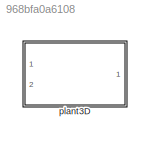
MODEL slx_968bfa0a6108
KIND library
CONFIG AbsTol = auto
CONFIG EnableMultiTasking = off
CONFIG FixedStep = auto
CONFIG MaxStep = auto
CONFIG MinStep = auto
CONFIG RelTol = 1e-3
CONFIG SampleTimeConstraint = Unconstrained
CONFIG Solver = VariableStepAuto
CONFIG SolverName = VariableStepAuto
CONFIG StartTime = 0.0
CONFIG StopTime = 10.0
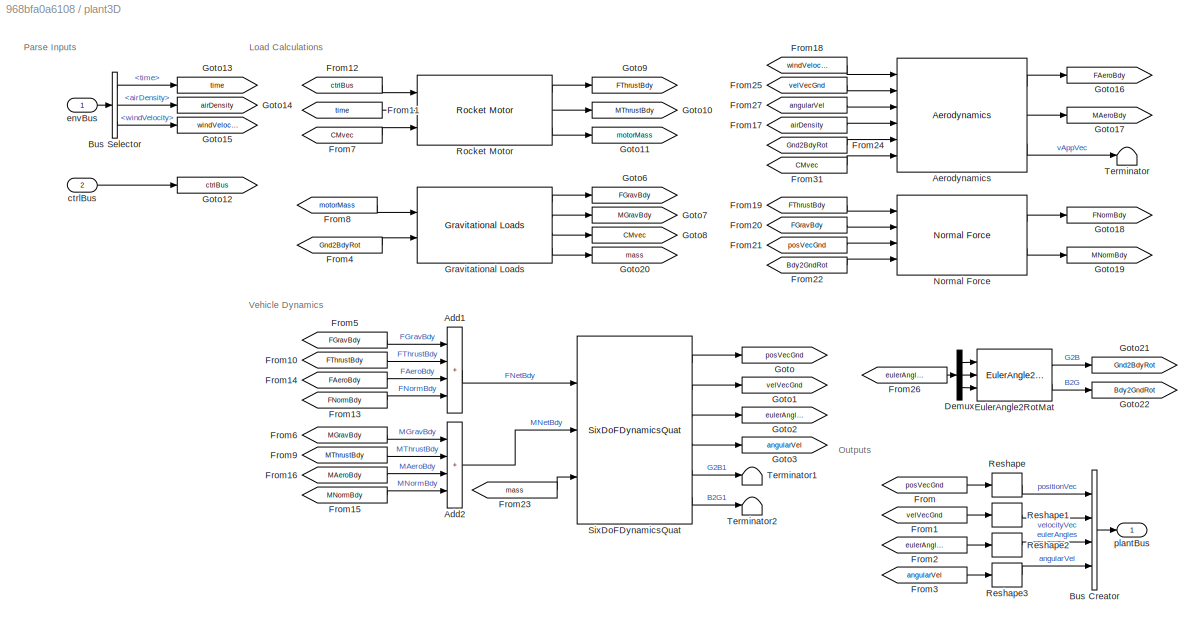
BLOCK [SubSystem] plant3D
  Ports = [2, 1]
  RequestExecContextInheritance = off
  VariantControl = strcmpi(PLANT,'wind3D')
BLOCK [Sum] plant3D/Add1
  IconShape = rectangular
  Inputs = ++++
  Ports = [4, 1]
BLOCK [Sum] plant3D/Add2
  IconShape = rectangular
  Inputs = ++++
  Ports = [4, 1]
BLOCK [Reference] plant3D/Aerodynamics  REF=aero3D_cl/Aerodynamics
  Ports = [6, 3]
  SourceBlock = aero3D_cl/Aerodynamics
BLOCK [BusCreator] plant3D/Bus Creator
  DisplayOption = bar
  InheritFromInputs = on
  Inputs = 4
  Ports = [4, 1]
BLOCK [BusSelector] plant3D/Bus Selector
  OutputSignals = time,airDensity,windVelocity
  Ports = [1, 3]
BLOCK [Demux] plant3D/Demux
  Outputs = 3
  Ports = [1, 3]
BLOCK [Reference] plant3D/EulerAngle2RotMat  REF=eulAng2RotMat_ul/EulerAngle2RotMat
  Ports = [3, 2]
  SourceBlock = eulAng2RotMat_ul/EulerAngle2RotMat
  SourceType = SubSystem
BLOCK [From] plant3D/From
  GotoTag = posVecGnd
BLOCK [From] plant3D/From1
  GotoTag = velVecGnd
BLOCK [From] plant3D/From10
  GotoTag = FThrustBdy
BLOCK [From] plant3D/From11
  GotoTag = time
BLOCK [From] plant3D/From12
  GotoTag = ctrlBus
BLOCK [From] plant3D/From13
  GotoTag = FNormBdy
BLOCK [From] plant3D/From14
  GotoTag = FAeroBdy
BLOCK [From] plant3D/From15
  GotoTag = MNormBdy
BLOCK [From] plant3D/From16
  GotoTag = MAeroBdy
BLOCK [From] plant3D/From17
  GotoTag = airDensity
BLOCK [From] plant3D/From18
  GotoTag = windVelocity
BLOCK [From] plant3D/From19
  GotoTag = FThrustBdy
BLOCK [From] plant3D/From2
  GotoTag = eulerAngles
BLOCK [From] plant3D/From20
  GotoTag = FGravBdy
BLOCK [From] plant3D/From21
  GotoTag = posVecGnd
BLOCK [From] plant3D/From22
  GotoTag = Bdy2GndRot
BLOCK [From] plant3D/From23
  GotoTag = mass
BLOCK [From] plant3D/From24
  GotoTag = Gnd2BdyRot
BLOCK [From] plant3D/From25
  GotoTag = velVecGnd
BLOCK [From] plant3D/From26
  GotoTag = eulerAngles
BLOCK [From] plant3D/From27
  GotoTag = angularVel
BLOCK [From] plant3D/From3
  GotoTag = angularVel
BLOCK [From] plant3D/From31
  GotoTag = CMvec
BLOCK [From] plant3D/From4
  GotoTag = Gnd2BdyRot
BLOCK [From] plant3D/From5
  GotoTag = FGravBdy
BLOCK [From] plant3D/From6
  GotoTag = MGravBdy
BLOCK [From] plant3D/From7
  GotoTag = CMvec
BLOCK [From] plant3D/From8
  GotoTag = motorMass
BLOCK [From] plant3D/From9
  GotoTag = MThrustBdy
BLOCK [Goto] plant3D/Goto
  GotoTag = posVecGnd
BLOCK [Goto] plant3D/Goto1
  GotoTag = velVecGnd
BLOCK [Goto] plant3D/Goto10
  GotoTag = MThrustBdy
BLOCK [Goto] plant3D/Goto11
  GotoTag = motorMass
BLOCK [Goto] plant3D/Goto12
  GotoTag = ctrlBus
BLOCK [Goto] plant3D/Goto13
  GotoTag = time
BLOCK [Goto] plant3D/Goto14
  GotoTag = airDensity
BLOCK [Goto] plant3D/Goto15
  GotoTag = windVelocity
BLOCK [Goto] plant3D/Goto16
  GotoTag = FAeroBdy
BLOCK [Goto] plant3D/Goto17
  GotoTag = MAeroBdy
BLOCK [Goto] plant3D/Goto18
  GotoTag = FNormBdy
BLOCK [Goto] plant3D/Goto19
  GotoTag = MNormBdy
BLOCK [Goto] plant3D/Goto2
  GotoTag = eulerAngles
BLOCK [Goto] plant3D/Goto20
  GotoTag = mass
BLOCK [Goto] plant3D/Goto21
  GotoTag = Gnd2BdyRot
BLOCK [Goto] plant3D/Goto22
  GotoTag = Bdy2GndRot
BLOCK [Goto] plant3D/Goto3
  GotoTag = angularVel
BLOCK [Goto] plant3D/Goto6
  GotoTag = FGravBdy
BLOCK [Goto] plant3D/Goto7
  GotoTag = MGravBdy
BLOCK [Goto] plant3D/Goto8
  GotoTag = CMvec
BLOCK [Goto] plant3D/Goto9
  GotoTag = FThrustBdy
BLOCK [Reference] plant3D/Gravitational Loads  REF=gravLoads3D_ul/Gravitational Loads
  Ports = [2, 4]
  SourceBlock = gravLoads3D_ul/Gravitational Loads
BLOCK [Reference] plant3D/Normal Force  REF=normalForce_ul/Normal Force
  Ports = [4, 2]
  SourceBlock = normalForce_ul/Normal Force
BLOCK [Reshape] plant3D/Reshape
  OutputDimensionality = Column vector (2-D)
  Ports = [1, 1]
BLOCK [Reshape] plant3D/Reshape1
  OutputDimensionality = Column vector (2-D)
  Ports = [1, 1]
BLOCK [Reshape] plant3D/Reshape2
  OutputDimensionality = Column vector (2-D)
  Ports = [1, 1]
BLOCK [Reshape] plant3D/Reshape3
  OutputDimensionality = Column vector (2-D)
  Ports = [1, 1]
BLOCK [Reference] plant3D/Rocket Motor  REF=motor3D_cl/Rocket Motor
  Ports = [3, 3]
  SourceBlock = motor3D_cl/Rocket Motor
BLOCK [Reference] plant3D/SixDoFDynamicsQuat  REF=SixDoFDynamicsQuat_cl/SixDoFDynamicsQuat
  Ports = [3, 6]
  SourceBlock = SixDoFDynamicsQuat_cl/SixDoFDynamicsQuat
BLOCK [Terminator] plant3D/Terminator
BLOCK [Terminator] plant3D/Terminator1
BLOCK [Terminator] plant3D/Terminator2
BLOCK [Inport] plant3D/ctrlBus
  Port = 2
BLOCK [Inport] plant3D/envBus
BLOCK [Outport] plant3D/plantBus
ANNOTATION plant3D: Load Calculations
ANNOTATION plant3D: Outputs
ANNOTATION plant3D: Parse Inputs
ANNOTATION plant3D: Vehicle Dynamics
LINE plant3D/Add1:1 -> plant3D/SixDoFDynamicsQuat:1
LINE plant3D/Add2:1 -> plant3D/SixDoFDynamicsQuat:2
LINE plant3D/Aerodynamics:1 -> plant3D/Goto16:1
LINE plant3D/Aerodynamics:2 -> plant3D/Goto17:1
LINE plant3D/Aerodynamics:3 -> plant3D/Terminator:1
LINE plant3D/Bus Creator:1 -> plant3D/plantBus:1
LINE plant3D/Bus Selector:1 -> plant3D/Goto13:1
LINE plant3D/Bus Selector:2 -> plant3D/Goto14:1
LINE plant3D/Bus Selector:3 -> plant3D/Goto15:1
LINE plant3D/Demux:1 -> plant3D/EulerAngle2RotMat:1
LINE plant3D/Demux:2 -> plant3D/EulerAngle2RotMat:2
LINE plant3D/Demux:3 -> plant3D/EulerAngle2RotMat:3
LINE plant3D/EulerAngle2RotMat:1 -> plant3D/Goto21:1
LINE plant3D/EulerAngle2RotMat:2 -> plant3D/Goto22:1
LINE plant3D/From10:1 -> plant3D/Add1:2
LINE plant3D/From11:1 -> plant3D/Rocket Motor:2
LINE plant3D/From12:1 -> plant3D/Rocket Motor:1
LINE plant3D/From13:1 -> plant3D/Add1:4
LINE plant3D/From14:1 -> plant3D/Add1:3
LINE plant3D/From15:1 -> plant3D/Add2:4
LINE plant3D/From16:1 -> plant3D/Add2:3
LINE plant3D/From17:1 -> plant3D/Aerodynamics:4
LINE plant3D/From18:1 -> plant3D/Aerodynamics:1
LINE plant3D/From19:1 -> plant3D/Normal Force:1
LINE plant3D/From1:1 -> plant3D/Reshape1:1
LINE plant3D/From20:1 -> plant3D/Normal Force:2
LINE plant3D/From21:1 -> plant3D/Normal Force:3
LINE plant3D/From22:1 -> plant3D/Normal Force:4
LINE plant3D/From23:1 -> plant3D/SixDoFDynamicsQuat:3
LINE plant3D/From24:1 -> plant3D/Aerodynamics:5
LINE plant3D/From25:1 -> plant3D/Aerodynamics:2
LINE plant3D/From26:1 -> plant3D/Demux:1
LINE plant3D/From27:1 -> plant3D/Aerodynamics:3
LINE plant3D/From2:1 -> plant3D/Reshape2:1
LINE plant3D/From31:1 -> plant3D/Aerodynamics:6
LINE plant3D/From3:1 -> plant3D/Reshape3:1
LINE plant3D/From4:1 -> plant3D/Gravitational Loads:2
LINE plant3D/From5:1 -> plant3D/Add1:1
LINE plant3D/From6:1 -> plant3D/Add2:1
LINE plant3D/From7:1 -> plant3D/Rocket Motor:3
LINE plant3D/From8:1 -> plant3D/Gravitational Loads:1
LINE plant3D/From9:1 -> plant3D/Add2:2
LINE plant3D/From:1 -> plant3D/Reshape:1
LINE plant3D/Gravitational Loads:1 -> plant3D/Goto6:1
LINE plant3D/Gravitational Loads:2 -> plant3D/Goto7:1
LINE plant3D/Gravitational Loads:3 -> plant3D/Goto8:1
LINE plant3D/Gravitational Loads:4 -> plant3D/Goto20:1
LINE plant3D/Normal Force:1 -> plant3D/Goto18:1
LINE plant3D/Normal Force:2 -> plant3D/Goto19:1
LINE plant3D/Reshape1:1 -> plant3D/Bus Creator:2
LINE plant3D/Reshape2:1 -> plant3D/Bus Creator:3
LINE plant3D/Reshape3:1 -> plant3D/Bus Creator:4
LINE plant3D/Reshape:1 -> plant3D/Bus Creator:1
LINE plant3D/Rocket Motor:1 -> plant3D/Goto9:1
LINE plant3D/Rocket Motor:2 -> plant3D/Goto10:1
LINE plant3D/Rocket Motor:3 -> plant3D/Goto11:1
LINE plant3D/SixDoFDynamicsQuat:1 -> plant3D/Goto:1
LINE plant3D/SixDoFDynamicsQuat:2 -> plant3D/Goto1:1
LINE plant3D/SixDoFDynamicsQuat:3 -> plant3D/Goto2:1
LINE plant3D/SixDoFDynamicsQuat:4 -> plant3D/Goto3:1
LINE plant3D/SixDoFDynamicsQuat:5 -> plant3D/Terminator1:1
LINE plant3D/SixDoFDynamicsQuat:6 -> plant3D/Terminator2:1
LINE plant3D/ctrlBus:1 -> plant3D/Goto12:1
LINE plant3D/envBus:1 -> plant3D/Bus Selector:1
